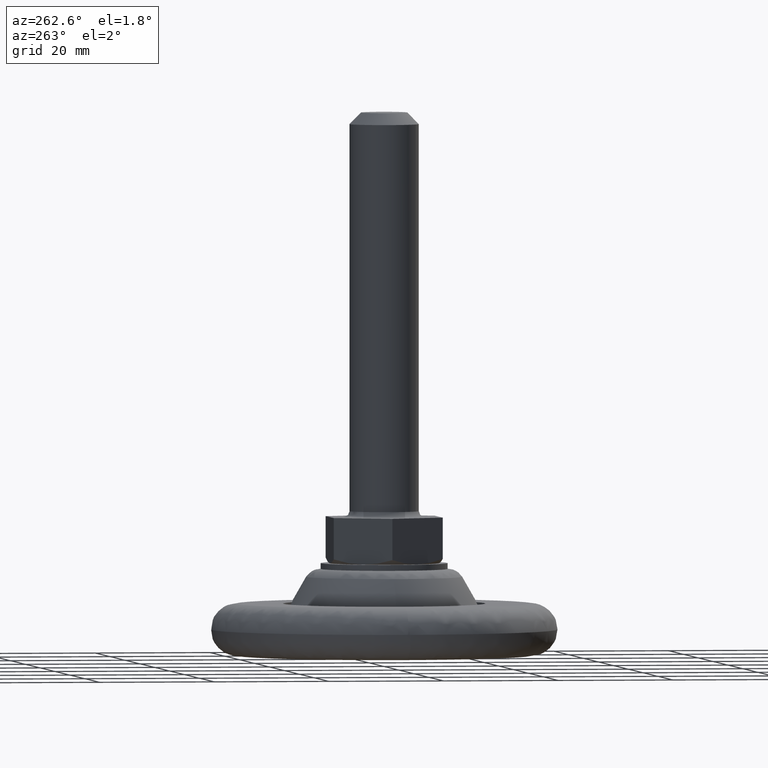
[diagram: clean part render]
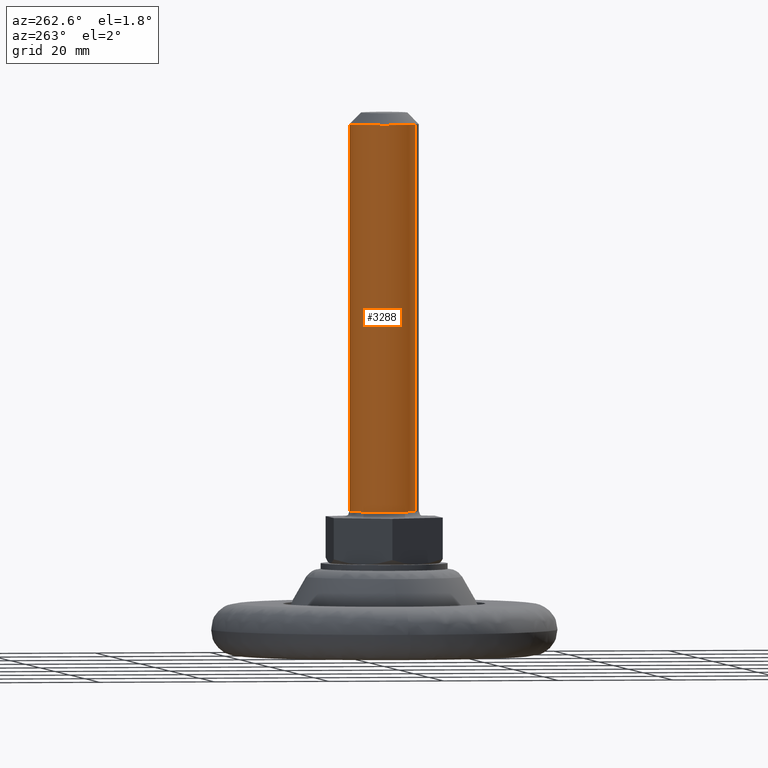
[diagram: same view with one face highlighted and labeled with its STEP entity id]
A machine part, auxiliary view. The second image highlights one B-rep face of the part: STEP entity #3288.
In plain terms, the highlighted face is a freeform B-spline surface patch.
Its self-contained STEP definition (entity closure, byte-faithful):
#3074=CARTESIAN_POINT('',(-3.223793063738238,-5.060351596694013,92.0));
#3075=VERTEX_POINT('',#3074);
#3096=CARTESIAN_POINT('',(0.052359213044698,5.999771538384358,91.999999999999375));
#3097=VERTEX_POINT('',#3096);
#3103=CARTESIAN_POINT('',(-6.0,0.0,92.0));
#3104=VERTEX_POINT('',#3103);
#3105=CARTESIAN_POINT('',(-6.0,0.0,92.0));
#3106=CARTESIAN_POINT('',(-6.000000000000357,6.000000000000139,91.999999999999687));
#3107=CARTESIAN_POINT('',(-1.013145E-012,5.999999999999817,91.999999999999389));
#3108=CARTESIAN_POINT('',(0.026180104950932,5.999999999999816,91.999999999999375));
#3109=CARTESIAN_POINT('',(0.052359213044698,5.999771538384358,91.999999999999375));
#3117=(BOUNDED_CURVE()B_SPLINE_CURVE(2,(#3105,#3106,#3107,#3108,#3109),.UNSPECIFIED.,.F.,.U.)B_SPLINE_CURVE_WITH_KNOTS((3,2,3),(0.500000000000000,0.750000000000000,0.751539894336616),.UNSPECIFIED.)CURVE()GEOMETRIC_REPRESENTATION_ITEM()RATIONAL_B_SPLINE_CURVE((1.0,0.707106781186548,1.0,0.998195901564464,0.996414028096637))REPRESENTATION_ITEM(''));
#3118=EDGE_CURVE('',#3104,#3097,#3117,.T.);
#3120=CARTESIAN_POINT('',(-3.223793063738238,-5.060351596694014,92.0));
#3121=CARTESIAN_POINT('',(-5.999999999999337,-3.291716257114011,91.999999999999986));
#3122=CARTESIAN_POINT('',(-6.0,0.0,92.0));
#3130=(BOUNDED_CURVE()B_SPLINE_CURVE(2,(#3120,#3121,#3122),.UNSPECIFIED.,.F.,.U.)B_SPLINE_CURVE_WITH_KNOTS((3,3),(0.341949938319387,0.500000000000000),.UNSPECIFIED.)CURVE()GEOMETRIC_REPRESENTATION_ITEM()RATIONAL_B_SPLINE_CURVE((0.863791124650735,0.814832834802802,1.0))REPRESENTATION_ITEM(''));
#3131=EDGE_CURVE('',#3075,#3104,#3130,.T.);
#3171=CARTESIAN_POINT('',(3.223793063738237,5.060351596694014,92.0));
#3172=VERTEX_POINT('',#3171);
#3186=CARTESIAN_POINT('',(0.052359213044698,5.999771538384358,91.999999999999375));
#3187=CARTESIAN_POINT('',(1.772763074816110,5.984757801319045,91.999999999999687));
#3188=CARTESIAN_POINT('',(3.223793063738238,5.060351596694014,92.0));
#3196=(BOUNDED_CURVE()B_SPLINE_CURVE(2,(#3186,#3187,#3188),.UNSPECIFIED.,.F.,.U.)B_SPLINE_CURVE_WITH_KNOTS((3,3),(0.751539894336616,0.841949938319387),.UNSPECIFIED.)CURVE()GEOMETRIC_REPRESENTATION_ITEM()RATIONAL_B_SPLINE_CURVE((0.996414028096637,0.891796941867167,0.863791124650735))REPRESENTATION_ITEM(''));
#3197=EDGE_CURVE('',#3097,#3172,#3196,.T.);
#3206=CARTESIAN_POINT('',(-3.223797650080942,-5.060348674877313,93.675000000000011));
#3207=CARTESIAN_POINT('',(-8.284146324958254,-1.836551024796371,93.675000000000026));
#3208=CARTESIAN_POINT('',(-5.060348674877313,3.223797650080942,93.675000000000011));
#3209=CARTESIAN_POINT('',(-1.836551024796371,8.284146324958254,93.675000000000026));
#3210=CARTESIAN_POINT('',(3.223797650080942,5.060348674877313,93.675000000000011));
#3211=CARTESIAN_POINT('',(-3.223797650080942,-5.060348674877313,23.283124999999981));
#3212=CARTESIAN_POINT('',(-8.284146324958254,-1.836551024796371,23.283124999999991));
#3213=CARTESIAN_POINT('',(-5.060348674877313,3.223797650080942,23.283124999999981));
#3214=CARTESIAN_POINT('',(-1.836551024796371,8.284146324958254,23.283124999999991));
#3215=CARTESIAN_POINT('',(3.223797650080942,5.060348674877313,23.283124999999981));
#3223=(BOUNDED_SURFACE()B_SPLINE_SURFACE(2,1,((#3206,#3211),(#3207,#3212),(#3208,#3213),(#3209,#3214),(#3210,#3215)),.UNSPECIFIED.,.F.,.F.,.U.)B_SPLINE_SURFACE_WITH_KNOTS((3,2,3),(2,2),(0.0,9.941125496954278,19.882250993908560),(0.0,70.391875000000041),.UNSPECIFIED.)GEOMETRIC_REPRESENTATION_ITEM()RATIONAL_B_SPLINE_SURFACE(((1.0,1.0),(0.707106781186548,0.707106781186548),(1.0,1.0),(0.707106781186548,0.707106781186548),(1.0,1.0)))REPRESENTATION_ITEM('')SURFACE());
#3224=CARTESIAN_POINT('',(-6.0,0.0,25.0));
#3225=VERTEX_POINT('',#3224);
#3226=CARTESIAN_POINT('',(-3.223794015247472,-5.060350990517948,25.000000000089148));
#3227=VERTEX_POINT('',#3226);
#3228=CARTESIAN_POINT('',(-6.0,0.0,25.0));
#3229=CARTESIAN_POINT('',(-5.999999999999584,-3.291715523234413,25.000000000031502));
#3230=CARTESIAN_POINT('',(-3.223794015247473,-5.060350990517948,25.000000000089152));
#3238=(BOUNDED_CURVE()B_SPLINE_CURVE(2,(#3228,#3229,#3230),.UNSPECIFIED.,.F.,.U.)B_SPLINE_CURVE_WITH_KNOTS((3,3),(0.500000000000000,0.658050032968453),.UNSPECIFIED.)CURVE()GEOMETRIC_REPRESENTATION_ITEM()RATIONAL_B_SPLINE_CURVE((1.0,0.814832868441190,0.863791106862731))REPRESENTATION_ITEM(''));
#3239=EDGE_CURVE('',#3225,#3227,#3238,.T.);
#3240=ORIENTED_EDGE('',*,*,#3239,.T.);
#3241=CARTESIAN_POINT('',(-3.223793063738238,-5.060351596694013,92.0));
#3242=CARTESIAN_POINT('',(-3.223794015247472,-5.060350990517948,25.000000000089148));
#3243=QUASI_UNIFORM_CURVE('',1,(#3241,#3242),.UNSPECIFIED.,.F.,.U.);
#3244=EDGE_CURVE('',#3075,#3227,#3243,.T.);
#3245=ORIENTED_EDGE('',*,*,#3244,.F.);
#3246=ORIENTED_EDGE('',*,*,#3131,.T.);
#3247=ORIENTED_EDGE('',*,*,#3118,.T.);
#3248=ORIENTED_EDGE('',*,*,#3197,.T.);
#3249=CARTESIAN_POINT('',(3.223794015247472,5.060350990517949,25.000000000089130));
#3250=VERTEX_POINT('',#3249);
#3251=CARTESIAN_POINT('',(3.223793063738237,5.060351596694014,92.0));
#3252=CARTESIAN_POINT('',(3.223794015247472,5.060350990517949,25.000000000089130));
#3253=QUASI_UNIFORM_CURVE('',1,(#3251,#3252),.UNSPECIFIED.,.F.,.U.);
#3254=EDGE_CURVE('',#3172,#3250,#3253,.T.);
#3255=ORIENTED_EDGE('',*,*,#3254,.T.);
#3256=CARTESIAN_POINT('',(-2.417438614306244,5.491447035714820,25.000000000175959));
#3257=VERTEX_POINT('',#3256);
#3258=CARTESIAN_POINT('',(3.223794015247473,5.060350990517949,25.000000000089130));
#3259=CARTESIAN_POINT('',(1.748838179553563,5.999999999999049,25.000000000119748));
#3260=CARTESIAN_POINT('',(-3.473120E-013,5.999999999999451,25.000000000145381));
#3261=CARTESIAN_POINT('',(-1.262211072353176,5.999999999999740,25.000000000163883));
#3262=CARTESIAN_POINT('',(-2.417438614306244,5.491447035714820,25.000000000175959));
#3270=(BOUNDED_CURVE()B_SPLINE_CURVE(2,(#3258,#3259,#3260,#3261,#3262),.UNSPECIFIED.,.F.,.U.)B_SPLINE_CURVE_WITH_KNOTS((3,2,3),(0.158050032968453,0.250000000000000,0.318414990139238),.UNSPECIFIED.)CURVE()GEOMETRIC_REPRESENTATION_ITEM()RATIONAL_B_SPLINE_CURVE((0.863791106862731,0.892273912745358,1.0,0.919846853292112,0.883563120517416))REPRESENTATION_ITEM(''));
#3271=EDGE_CURVE('',#3250,#3257,#3270,.T.);
#3272=ORIENTED_EDGE('',*,*,#3271,.T.);
#3273=CARTESIAN_POINT('',(-2.417438614306244,5.491447035714820,25.000000000175959));
#3274=CARTESIAN_POINT('',(-6.000000000000001,3.914335907159392,25.000000000087979));
#3275=CARTESIAN_POINT('',(-6.0,0.0,25.0));
#3283=(BOUNDED_CURVE()B_SPLINE_CURVE(2,(#3273,#3274,#3275),.UNSPECIFIED.,.F.,.U.)B_SPLINE_CURVE_WITH_KNOTS((3,3),(0.318414990139238,0.500000000000000),.UNSPECIFIED.)CURVE()GEOMETRIC_REPRESENTATION_ITEM()RATIONAL_B_SPLINE_CURVE((0.883563120517416,0.787259927894436,1.0))REPRESENTATION_ITEM(''));
#3284=EDGE_CURVE('',#3257,#3225,#3283,.T.);
#3285=ORIENTED_EDGE('',*,*,#3284,.T.);
#3286=EDGE_LOOP('',(#3240,#3245,#3246,#3247,#3248,#3255,#3272,#3285));
#3287=FACE_OUTER_BOUND('',#3286,.T.);
#3288=ADVANCED_FACE('',(#3287),#3223,.T.);